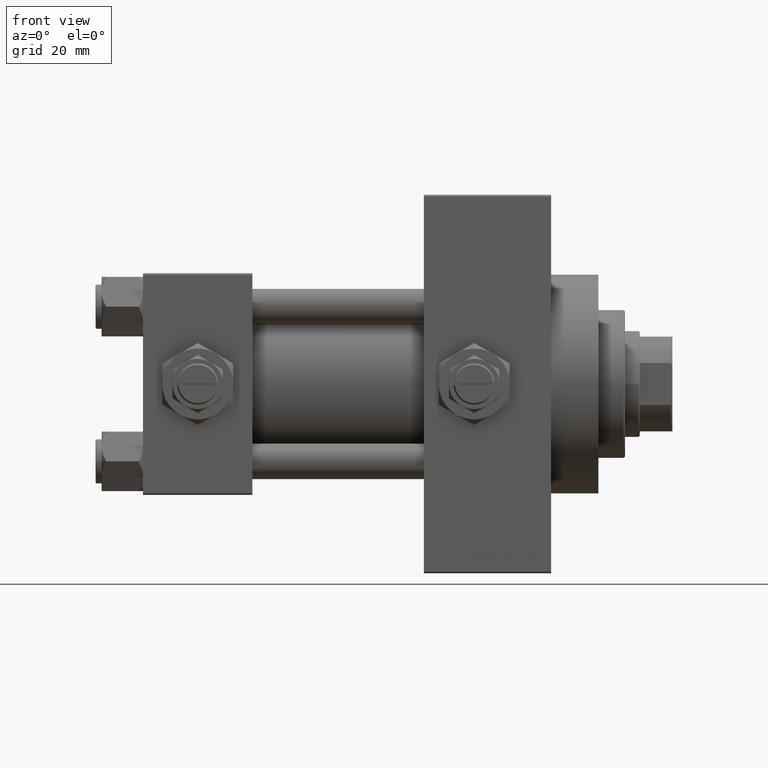
[diagram: clean part render]
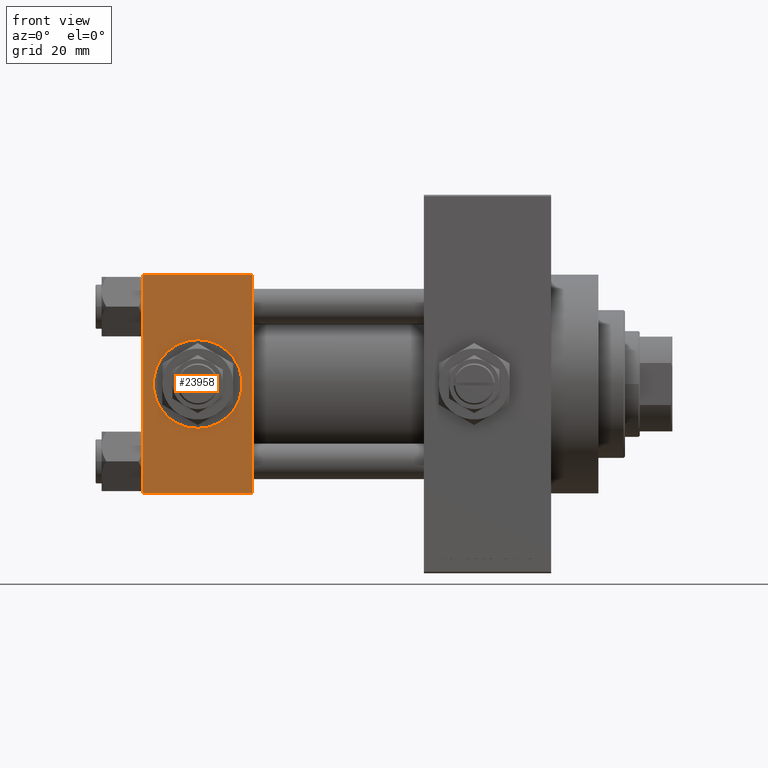
[diagram: same view with one face highlighted and labeled with its STEP entity id]
A machine part, front view. The second image highlights one B-rep face of the part: STEP entity #23958.
In plain terms, the highlighted planar face has unit normal (0, 1, 0).
Its self-contained STEP definition (entity closure, byte-faithful):
#279 = CARTESIAN_POINT ( 'NONE',  ( 18.50000000000000355, -37.50000000000000711, 14.99999999999999822 ) ) ;
#522 = VERTEX_POINT ( 'NONE', #32119 ) ;
#1421 = DIRECTION ( 'NONE',  ( 1.000000000000000000, 0.000000000000000000, 0.000000000000000000 ) ) ;
#2966 = CARTESIAN_POINT ( 'NONE',  ( 18.50000000000000000, -37.50000000000000711, -3.469446951953614978E-15 ) ) ;
#3275 = EDGE_CURVE ( 'NONE', #8636, #25856, #7812, .T. ) ;
#3414 = CARTESIAN_POINT ( 'NONE',  ( 37.00000000000000000, -37.50000000000000711, 36.99999999999999289 ) ) ;
#3938 = VERTEX_POINT ( 'NONE', #18787 ) ;
#5133 = EDGE_LOOP ( 'NONE', ( #29426, #42102 ) ) ;
#6344 = EDGE_LOOP ( 'NONE', ( #36215, #45460, #14128, #31593 ) ) ;
#6882 = AXIS2_PLACEMENT_3D ( 'NONE', #42752, #7917, #23199 ) ;
#7812 = LINE ( 'NONE', #45657, #26301 ) ;
#7917 = DIRECTION ( 'NONE',  ( -0.000000000000000000, 1.000000000000000000, 9.251858538542971581E-17 ) ) ;
#8574 = VECTOR ( 'NONE', #22821, 1000.000000000000000 ) ;
#8636 = VERTEX_POINT ( 'NONE', #3414 ) ;
#8940 = CARTESIAN_POINT ( 'NONE',  ( 37.00000000000000000, -37.50000000000000000, -37.00000000000003553 ) ) ;
#9311 = LINE ( 'NONE', #9819, #32046 ) ;
#9819 = CARTESIAN_POINT ( 'NONE',  ( 37.00000000000000000, -37.50000000000000711, 36.99999999999999289 ) ) ;
#12193 = FACE_OUTER_BOUND ( 'NONE', #6344, .T. ) ;
#12570 = VERTEX_POINT ( 'NONE', #279 ) ;
#14128 = ORIENTED_EDGE ( 'NONE', *, *, #3275, .F. ) ;
#16053 = CARTESIAN_POINT ( 'NONE',  ( 0.000000000000000000, -37.50000000000000711, 36.99999999999999289 ) ) ;
#17529 = DIRECTION ( 'NONE',  ( 0.000000000000000000, -1.000000000000000000, -8.673617379884036705E-17 ) ) ;
#18261 = DIRECTION ( 'NONE',  ( 0.000000000000000000, -1.000000000000000000, -8.673617379884036705E-17 ) ) ;
#18787 = CARTESIAN_POINT ( 'NONE',  ( 18.50000000000000000, -37.50000000000000711, -15.00000000000000533 ) ) ;
#18828 = CARTESIAN_POINT ( 'NONE',  ( 0.000000000000000000, -37.50000000000000711, 37.49999999999999289 ) ) ;
#22821 = DIRECTION ( 'NONE',  ( 0.000000000000000000, 9.251858538542971581E-17, -1.000000000000000000 ) ) ;
#23199 = DIRECTION ( 'NONE',  ( 0.000000000000000000, -9.251858538542971581E-17, 1.000000000000000000 ) ) ;
#23404 = VERTEX_POINT ( 'NONE', #16053 ) ;
#23727 = LINE ( 'NONE', #8940, #42326 ) ;
#23958 = ADVANCED_FACE ( 'NONE', ( #46503, #12193 ), #27472, .F. ) ;
#25784 = DIRECTION ( 'NONE',  ( 0.000000000000000000, 0.000000000000000000, -1.000000000000000000 ) ) ;
#25808 = CIRCLE ( 'NONE', #47408, 15.00000000000000178 ) ;
#25856 = VERTEX_POINT ( 'NONE', #45842 ) ;
#26028 = DIRECTION ( 'NONE',  ( 0.000000000000000000, 0.000000000000000000, -1.000000000000000000 ) ) ;
#26301 = VECTOR ( 'NONE', #30891, 1000.000000000000000 ) ;
#26991 = EDGE_CURVE ( 'NONE', #23404, #522, #41631, .T. ) ;
#27472 = PLANE ( 'NONE',  #6882 ) ;
#29426 = ORIENTED_EDGE ( 'NONE', *, *, #30712, .F. ) ;
#30712 = EDGE_CURVE ( 'NONE', #3938, #12570, #36593, .T. ) ;
#30891 = DIRECTION ( 'NONE',  ( 0.000000000000000000, 9.251858538542971581E-17, -1.000000000000000000 ) ) ;
#31593 = ORIENTED_EDGE ( 'NONE', *, *, #38197, .T. ) ;
#32046 = VECTOR ( 'NONE', #47651, 1000.000000000000000 ) ;
#32119 = CARTESIAN_POINT ( 'NONE',  ( 0.000000000000000000, -37.50000000000000000, -37.00000000000003553 ) ) ;
#33568 = CARTESIAN_POINT ( 'NONE',  ( 18.50000000000000000, -37.50000000000000711, -3.469446951953614978E-15 ) ) ;
#34309 = AXIS2_PLACEMENT_3D ( 'NONE', #33568, #17529, #25784 ) ;
#35835 = EDGE_CURVE ( 'NONE', #522, #25856, #23727, .T. ) ;
#36215 = ORIENTED_EDGE ( 'NONE', *, *, #26991, .T. ) ;
#36593 = CIRCLE ( 'NONE', #34309, 15.00000000000000178 ) ;
#38197 = EDGE_CURVE ( 'NONE', #8636, #23404, #9311, .T. ) ;
#41631 = LINE ( 'NONE', #18828, #8574 ) ;
#42102 = ORIENTED_EDGE ( 'NONE', *, *, #43834, .F. ) ;
#42326 = VECTOR ( 'NONE', #1421, 1000.000000000000000 ) ;
#42752 = CARTESIAN_POINT ( 'NONE',  ( 37.00000000000000000, -37.50000000000000711, 37.49999999999999289 ) ) ;
#43834 = EDGE_CURVE ( 'NONE', #12570, #3938, #25808, .T. ) ;
#45460 = ORIENTED_EDGE ( 'NONE', *, *, #35835, .T. ) ;
#45657 = CARTESIAN_POINT ( 'NONE',  ( 37.00000000000000000, -37.50000000000000711, 37.49999999999999289 ) ) ;
#45842 = CARTESIAN_POINT ( 'NONE',  ( 37.00000000000000000, -37.50000000000000000, -37.00000000000003553 ) ) ;
#46503 = FACE_BOUND ( 'NONE', #5133, .T. ) ;
#47408 = AXIS2_PLACEMENT_3D ( 'NONE', #2966, #18261, #26028 ) ;
#47651 = DIRECTION ( 'NONE',  ( -1.000000000000000000, 0.000000000000000000, 0.000000000000000000 ) ) ;